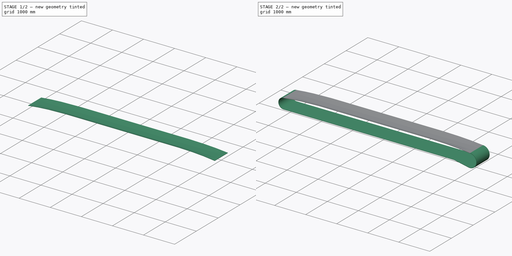
[diagram: build sequence overview — one tinted view per stage of 2, left to right]
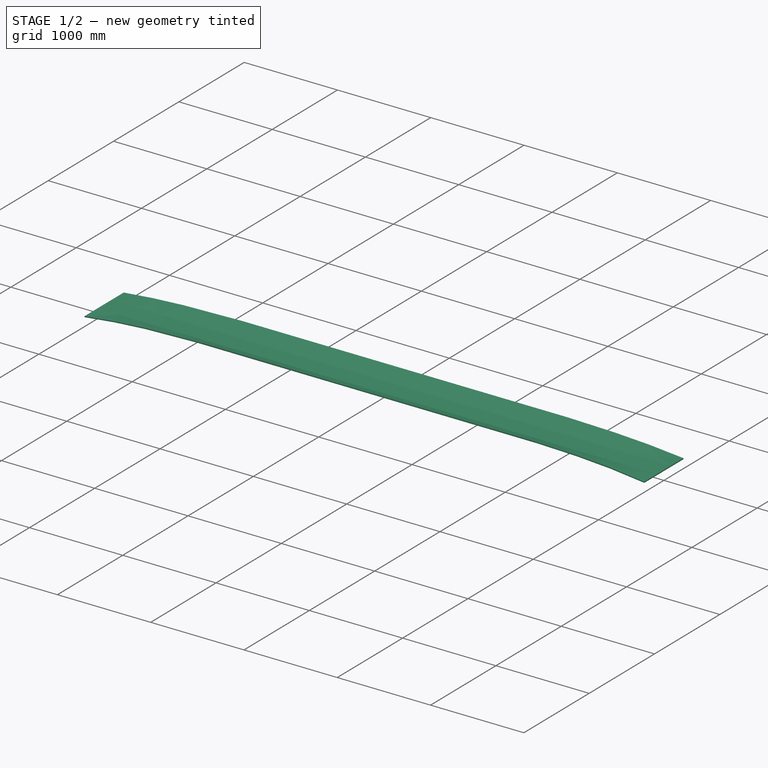
[diagram: stage 1 of 2 — iso view after this stage's code; geometry added in this stage tinted green]
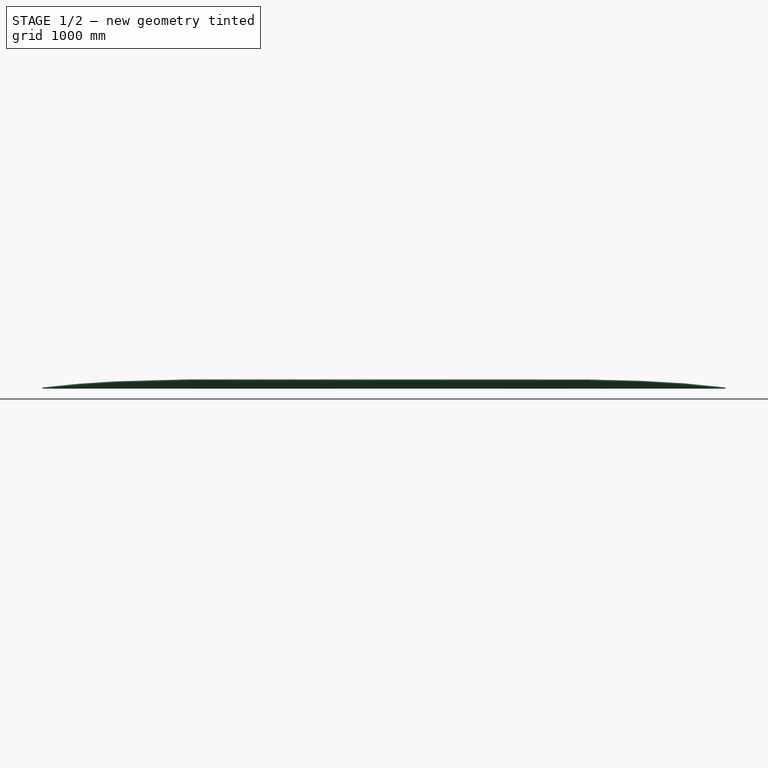
[diagram: stage 1 of 2 — front view after this stage's code; geometry added in this stage tinted green]
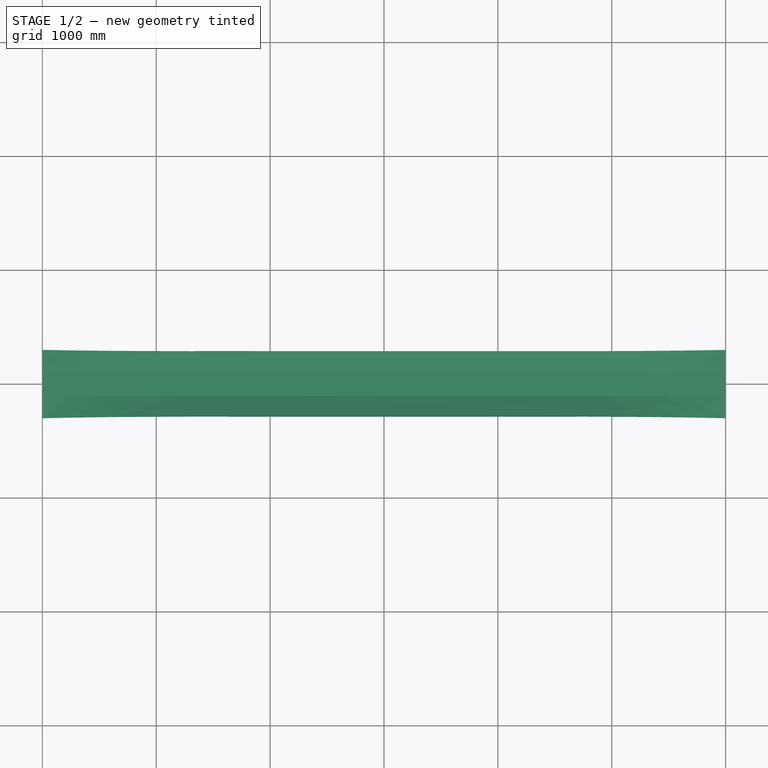
[diagram: stage 1 of 2 — top view after this stage's code; geometry added in this stage tinted green]
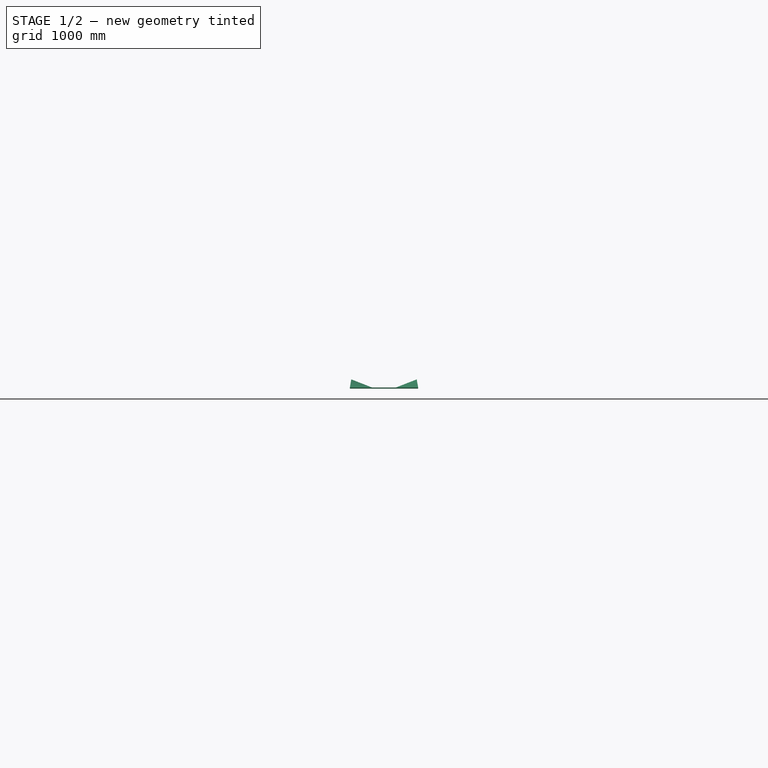
[diagram: stage 1 of 2 — right view after this stage's code; geometry added in this stage tinted green]
FCSTD DOCUMENT  (FreeCAD 1.0R39319 (Git))
Label: Belt0
License: All rights reserved
LicenseURL: https://en.wikipedia.org/wiki/All_rights_reserved
objects: Sketcher::SketchObject×7, Part::Extrusion×2, Spreadsheet::Sheet×1, Part::Sweep×1, App::Part×1
note: 17 computed .brp shape members not serialized (recipe doc carries the construction recipe); baked Part::Feature solids carry a one-line shape summary decoded from their .brp

FEATURE [Spreadsheet::Sheet] Spreadsheet
  cells = A2='CenterDistance C0; B2(C0)=6000; A3='BeltWidth B0; B3(B0)=600; C3=400; D3=450; E3=500; F3=600; G3=700; H3=750; I3=800; J3=900; K3=1000; A4='Belt b1; B4(b1)=210; C4=145; D4=165; E4=180; F4=210; G4=250; H4=265; I4=280; J4=315; K4=345; A5='Belt b2; B5(b2)=195; C5==(C3 - C4) / 2; D5==(D3 - D4) / 2; E5==(E3 - E4) / 2; F5==(F3 - F4) / 2; G5==(G3 - G4) / 2; H5==(H3 - H4) / 2; I5==(I3 - I4) / 2; J5==(J3 - J4) / 2; K5==(K3 - K4) / 2; A6='BeltThickness t0; B6(t0)=10; C6=10; D6=10; E6=10; F6=10; G6=10; H6=10; I6=10; J6=10; K6=10; A7='HeadPullyDia D0; B7(D0)=420; C7=300; D7=300; E7=360; F7=360; G7=360; H7=460; I7=460; J7=520; K7=520; A8='TailPullyDia d1; B8(d1)=320; C8=260; D8=260; E8=300; F8=300; G8=300; H8=390; I8=390; J8=440; K8=440; A9='SnapPullyDia d2; B9(d2)=200; C9=200; D9=200; E9=200; F9=200; G9=200; H9=200; I9=200; J9=200; K9=200; A10='SnapPully Ls; B10(Ls)=500; C10=500; D10=500; E10=500; F10=500; G10=500; H10=500; I10=500; J10=500; K10=500; A11='SnapPully h0; B11(h0)=180; C11=180; D11=180; E11=180; F11=180; G11=180; H11=180; I11=180; J11=180; K11=180
FEATURE [Part::Sweep] Sweep
  Frenet = false
  Sections = -> [Sketch,Sketch002,Sketch003,Sketch001,Sketch006]
  Solid = false
  Spine = -> Sketch004 [Edge2]
  Transition = 1
FEATURE [Part::Extrusion] Extrude002
  Base = -> Sweep
  Dir = (0,0,1)
  DirMode = 0
  FaceMakerClass = Part::FaceMakerBullseye
  FaceMakerMode = 3
  LengthFwd = 10
  LengthRev = 0
  Solid = false
  Symmetric = false
FEATURE [App::Part] Part  label="Belt"
  Group = -> [Spreadsheet,Extrude002,Sketch,Sketch001,Sketch002,Sweep,Sketch003,Sketch004,Sketch005,Sketch006,Extrude]
  JPN = コンベヤベルト
  Origin = -> Origin
  Placement = pos=(-543.28,-95.3912,269.959) rot=(0,0,1;0rad)
  Standard = B=600  L=6000
  count = 1
  g0 = 1
  mass = 65.8517
  material = Neoprene rubber
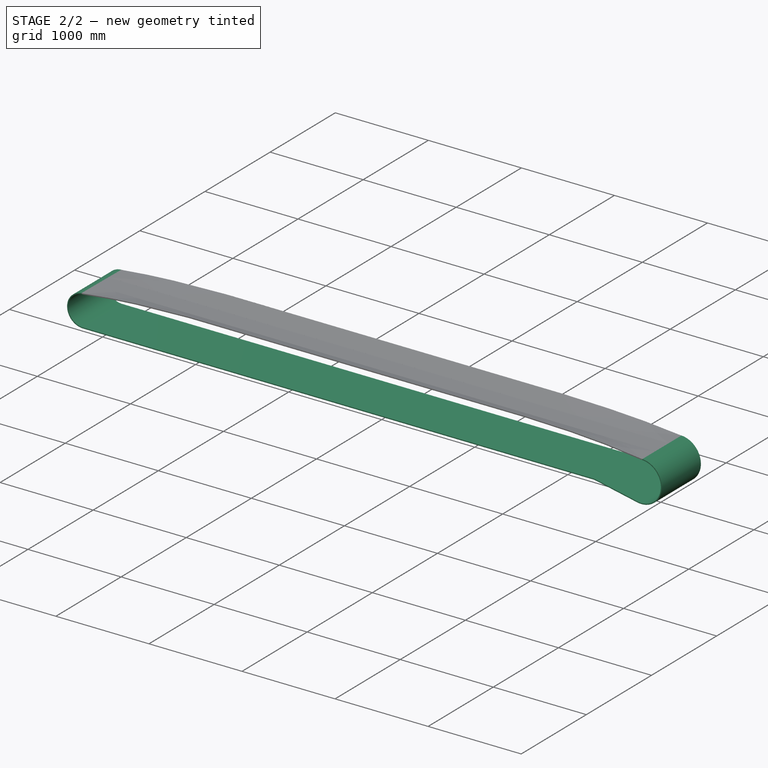
[diagram: stage 2 of 2 — iso view after this stage's code; geometry added in this stage tinted green]
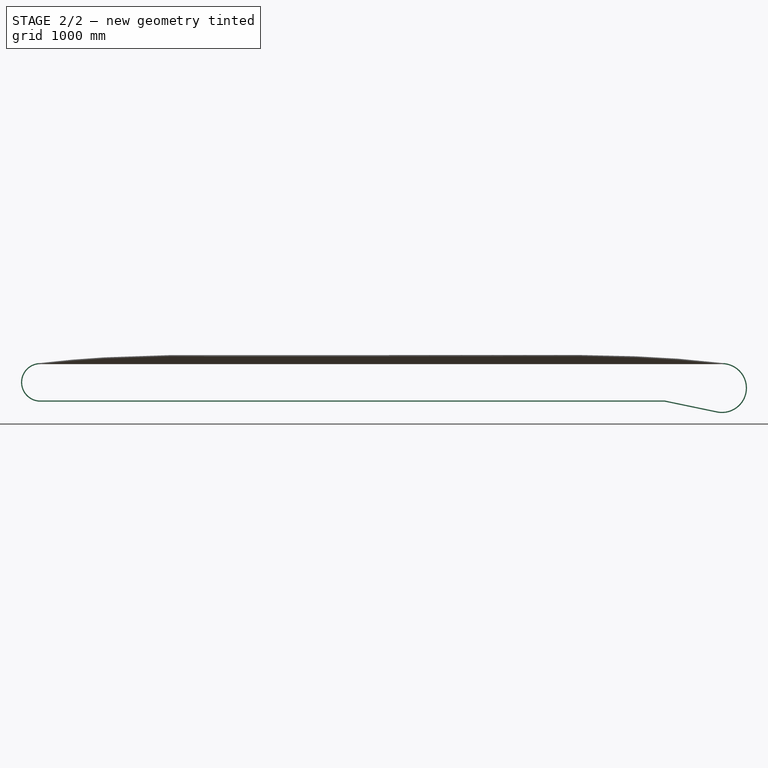
[diagram: stage 2 of 2 — front view after this stage's code; geometry added in this stage tinted green]
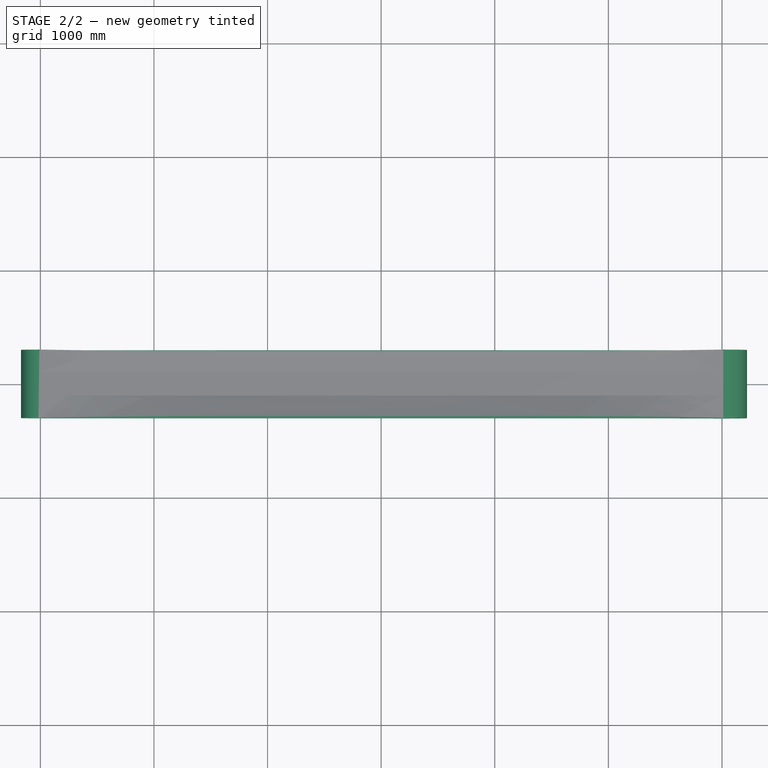
[diagram: stage 2 of 2 — top view after this stage's code; geometry added in this stage tinted green]
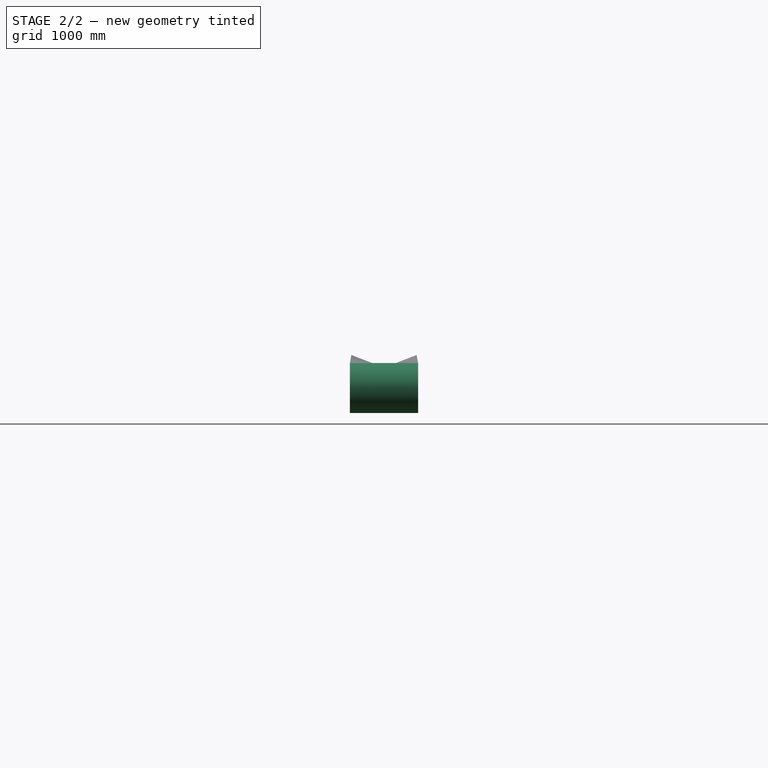
[diagram: stage 2 of 2 — right view after this stage's code; geometry added in this stage tinted green]
FEATURE [Sketcher::SketchObject] Sketch
  ArcFitTolerance = 0
  FullyConstrained = true
  MakeInternals = false
  Placement = pos=(0,0,0) rot=(0.57735,0.57735,0.57735;2.0944rad)
  expr: Constraints[1] = Spreadsheet.B0
  expr: Constraints[2] = Spreadsheet.d1 / 2
  sketch-geometry (1):
    g0: LineSegment StartX=-300 StartY=160 StartZ=0 EndX=300 EndY=160 EndZ=0
  constraints (3):
    c: Symmetric(g0,g0,g-2)
    c: DistanceX(g0,g0) = 600
    c: Distance(g-1,g0) = 160
FEATURE [Sketcher::SketchObject] Sketch001
  ArcFitTolerance = 0
  FullyConstrained = true
  MakeInternals = false
  Placement = pos=(6000,0,0) rot=(0.57735,0.57735,0.57735;2.0944rad)
  expr: .Placement.Base.x = Spreadsheet.C0
  expr: Constraints[1] = Spreadsheet.B0
  expr: Constraints[2] = Spreadsheet.d1 / 2
  sketch-geometry (1):
    g0: LineSegment StartX=-300 StartY=160 StartZ=0 EndX=300 EndY=160 EndZ=0
  constraints (3):
    c: Symmetric(g0,g0,g-2)
    c: DistanceX(g0,g0) = 600
    c: Distance(g-1,g0) = 160
FEATURE [Sketcher::SketchObject] Sketch002
  ArcFitTolerance = 0
  FullyConstrained = true
  MakeInternals = false
  Placement = pos=(1000,0,0) rot=(0.57735,0.57735,0.57735;2.0944rad)
  expr: Constraints[5] = Spreadsheet.b2
  expr: Constraints[6] = Spreadsheet.b2
  expr: Constraints[7] = Spreadsheet.d1 / 2
  expr: Constraints[8] = Spreadsheet.b1
  sketch-geometry (3):
    g0: LineSegment StartX=-288.24 StartY=226.694 StartZ=0 EndX=-105 EndY=160 EndZ=0
    g1: LineSegment StartX=-105 StartY=160 StartZ=0 EndX=105 EndY=160 EndZ=0
    g2: LineSegment StartX=105 StartY=160 StartZ=0 EndX=288.24 EndY=226.694 EndZ=0
  constraints (9):
    c: Coincident(g0,g1)
    c: Coincident(g1,g2)
    c: Angle(g2,g1) = 2.79253
    c: Angle(g1,g0) = 2.79253
    c: Symmetric(g1,g0,g-2)
    c: Distance(g2) = 195
    c: Distance(g0) = 195
    c: DistanceY(g-1,g1) = 160
    c: DistanceX(g1,g1) = 210
FEATURE [Sketcher::SketchObject] Sketch003
  ArcFitTolerance = 0
  FullyConstrained = true
  MakeInternals = false
  Placement = pos=(5000,0,0) rot=(0.57735,0.57735,0.57735;2.0944rad)
  expr: .Placement.Base.x = Spreadsheet.C0 - 1000
  expr: Constraints[5] = Spreadsheet.b2
  expr: Constraints[6] = Spreadsheet.b2
  expr: Constraints[7] = Spreadsheet.d1 / 2
  expr: Constraints[8] = Spreadsheet.b1
  sketch-geometry (3):
    g0: LineSegment StartX=-288.24 StartY=226.694 StartZ=0 EndX=-105 EndY=160 EndZ=0
    g1: LineSegment StartX=-105 StartY=160 StartZ=0 EndX=105 EndY=160 EndZ=0
    g2: LineSegment StartX=105 StartY=160 StartZ=0 EndX=288.24 EndY=226.694 EndZ=0
  constraints (9):
    c: Coincident(g0,g1)
    c: Coincident(g1,g2)
    c: Angle(g2,g1) = 2.79253
    c: Angle(g1,g0) = 2.79253
    c: Symmetric(g1,g0,g-2)
    c: Distance(g2) = 195
    c: Distance(g0) = 195
    c: DistanceY(g-1,g1) = 160
    c: DistanceX(g1,g1) = 210
FEATURE [Sketcher::SketchObject] Sketch004
  ArcFitTolerance = 0
  FullyConstrained = false
  MakeInternals = false
  Placement = pos=(6000,0,0) rot=(1,0,0;1.5708rad)
  expr: .Placement.Base.x = Spreadsheet.C0
  expr: Constraints[0] = Spreadsheet.d1
  expr: Constraints[12] = Spreadsheet.D0 / 2
  expr: Constraints[2] = Spreadsheet.C0
  sketch-geometry (5):
    g0: ArcOfCircle CenterX=-6000.43 CenterY=0 CenterZ=0 NormalX=0 NormalY=0 NormalZ=1 AngleXU=0 Radius=160 StartAngle=1.5681 EndAngle=4.71509
    g1: LineSegment StartX=-6000 StartY=159.999 StartZ=0 EndX=0 EndY=143.81 EndZ=0
    g2: LineSegment StartX=-59.6027 StartY=-267.554 StartZ=0 EndX=-500 EndY=-137.199 EndZ=0
    g3: LineSegment StartX=-500 StartY=-137.199 StartZ=0 EndX=-6000 EndY=-159.999 EndZ=0
    g4: ArcOfCircle CenterX=0 CenterY=-66.1903 CenterZ=0 NormalX=0 NormalY=0 NormalZ=1 AngleXU=0 Radius=210 StartAngle=4.42461 EndAngle=7.85398
  constraints (14):
    c: Diameter(g0) = 320
    c: Coincident(g0,g3)
    c: DistanceX(g0,g1) = 6000
    c: Vertical(g0,g0)
    c: PointOnObject(g0,g-1)
    c: Coincident(g2,g3)
    c: DistanceX(g2,g-1) = 500
    c: Tangent(g1,g0) = 1.5708
    c: PointOnObject(g4,g-2)
    c: PointOnObject(g4,g-2)
    c: Tangent(g4,g2) = 1.5708
    c: Coincident(g1,g4)
    c: Radius(g4) = 210
    c: Distance(g4,g-1) = 66.1903
FEATURE [Sketcher::SketchObject] Sketch005
  ArcFitTolerance = 0
  FullyConstrained = false
  MakeInternals = false
  Placement = pos=(6000,0,0) rot=(1,0,0;1.5708rad)
  expr: .Placement.Base.x = Spreadsheet.C0
  expr: Constraints[0] = Spreadsheet.d1
  expr: Constraints[25] = Spreadsheet.D0 / 2
  expr: Constraints[26] = Spreadsheet.C0
  expr: Constraints[27] = (Spreadsheet.D0 - Spreadsheet.d1) / 2
  expr: Constraints[6] = Spreadsheet.t0
  sketch-geometry (10):
    g0: ArcOfCircle CenterX=-6000 CenterY=0 CenterZ=0 NormalX=0 NormalY=0 NormalZ=1 AngleXU=0 Radius=160 StartAngle=1.5708 EndAngle=4.71239
    g1: LineSegment StartX=-42.7085 StartY=-255.611 StartZ=0 EndX=-503.01 EndY=-160 EndZ=0
    g2: LineSegment StartX=-503.01 StartY=-160 StartZ=0 EndX=-6000 EndY=-160 EndZ=0
    g3: ArcOfCircle CenterX=-6000 CenterY=0 CenterZ=0 NormalX=0 NormalY=0 NormalZ=1 AngleXU=0 Radius=170 StartAngle=1.5708 EndAngle=4.71239
    g4: LineSegment StartX=-6000 StartY=-170 StartZ=0 EndX=-504.037 EndY=-170 EndZ=0
    g5: LineSegment StartX=-504.037 StartY=-170 StartZ=0 EndX=-44.7422 EndY=-265.402 EndZ=0
    g6: LineSegment StartX=-6000 StartY=160 StartZ=0 EndX=-6000 EndY=170 EndZ=0
    g7: ArcOfCircle CenterX=0 CenterY=-50 CenterZ=0 NormalX=0 NormalY=0 NormalZ=1 AngleXU=0 Radius=210 StartAngle=4.50759 EndAngle=7.85398
    g8: ArcOfCircle CenterX=0 CenterY=-50 CenterZ=0 NormalX=0 NormalY=0 NormalZ=1 AngleXU=0 Radius=220 StartAngle=4.50759 EndAngle=7.85398
    g9: LineSegment StartX=0 StartY=170 StartZ=0 EndX=0 EndY=160 EndZ=0
  constraints (28):
    c: Diameter(g0) = 320
    c: Horizontal(g2)
    c: Coincident(g0,g2)
    c: Vertical(g0,g0)
    c: Coincident(g3,g0)
    c: Tangent(g3,g4) = -1.5708
    c: DistanceY(g3,g0) = 10
    c: Vertical(g0,g3)
    c: Coincident(g6,g0)
    c: Coincident(g6,g3)
    c: Vertical(g0,g0)
    c: Parallel(g5,g1)
    c: Parallel(g4,g2)
    c: Coincident(g1,g2)
    c: Coincident(g5,g4)
    c: PointOnObject(g0,g-1)
    c: PointOnObject(g7,g-2)
    c: PointOnObject(g7,g-2)
    c: Coincident(g8,g7)
    c: PointOnObject(g8,g-2)
    c: Coincident(g9,g8)
    c: Coincident(g9,g7)
    c: DistanceY(g9,g9) = 10
    c: Tangent(g7,g1) = 1.5708
    c: Tangent(g8,g5) = -1.5708
    c: Radius(g7) = 210
    c: DistanceX(g0,g-1) = 6000
    c: Distance(g7,g-1) = 50
FEATURE [Sketcher::SketchObject] Sketch006
  ArcFitTolerance = 0
  FullyConstrained = true
  MakeInternals = false
  Placement = pos=(3000,0,0) rot=(0.57735,0.57735,0.57735;2.0944rad)
  expr: .Placement.Base.x = Spreadsheet.C0 / 2
  expr: Constraints[5] = Spreadsheet.b2
  expr: Constraints[6] = Spreadsheet.b2
  expr: Constraints[7] = Spreadsheet.d1 / 2
  expr: Constraints[8] = Spreadsheet.b1
  sketch-geometry (3):
    g0: LineSegment StartX=-288.24 StartY=226.694 StartZ=0 EndX=-105 EndY=160 EndZ=0
    g1: LineSegment StartX=-105 StartY=160 StartZ=0 EndX=105 EndY=160 EndZ=0
    g2: LineSegment StartX=105 StartY=160 StartZ=0 EndX=288.24 EndY=226.694 EndZ=0
  constraints (9):
    c: Coincident(g0,g1)
    c: Coincident(g1,g2)
    c: Angle(g2,g1) = 2.79253
    c: Angle(g1,g0) = 2.79253
    c: Symmetric(g1,g0,g-2)
    c: Distance(g2) = 195
    c: Distance(g0) = 195
    c: DistanceY(g-1,g1) = 160
    c: DistanceX(g1,g1) = 210
FEATURE [Part::Extrusion] Extrude
  Base = -> Sketch005
  Dir = (0,-1,2e-16)
  DirMode = 2
  FaceMakerClass = Part::FaceMakerBullseye
  FaceMakerMode = 3
  LengthFwd = 600
  LengthRev = 0
  Solid = true
  Symmetric = true
  expr: LengthFwd = Spreadsheet.B0
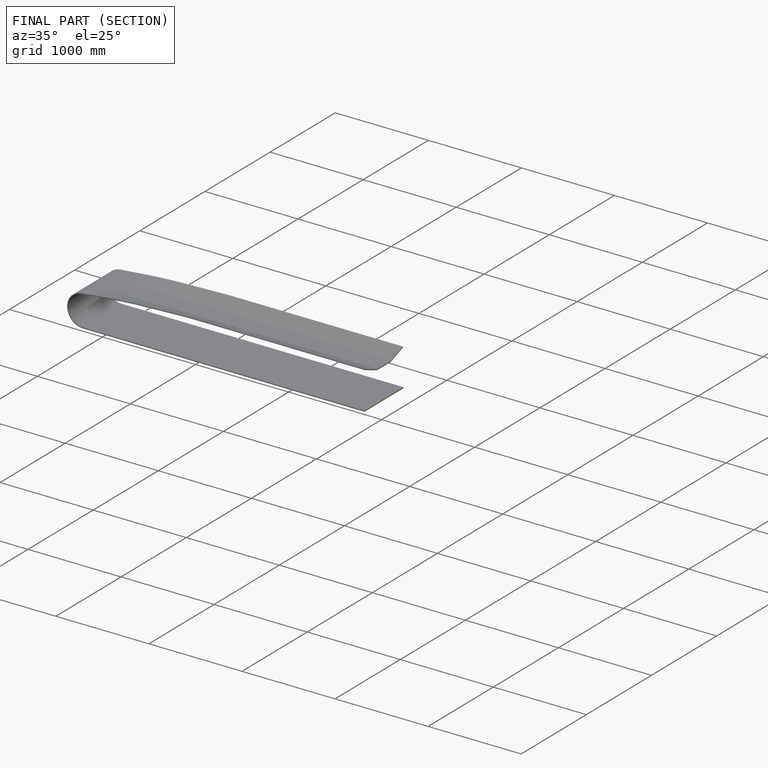
[diagram: finished part — half-section view (interior)]
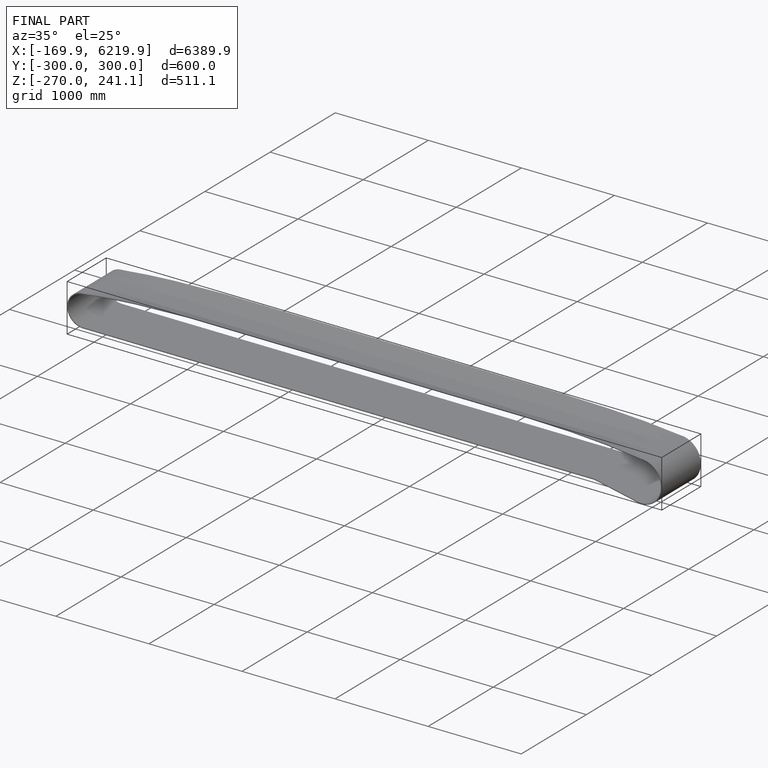
[diagram: finished part — iso view with bounding-box wireframe]
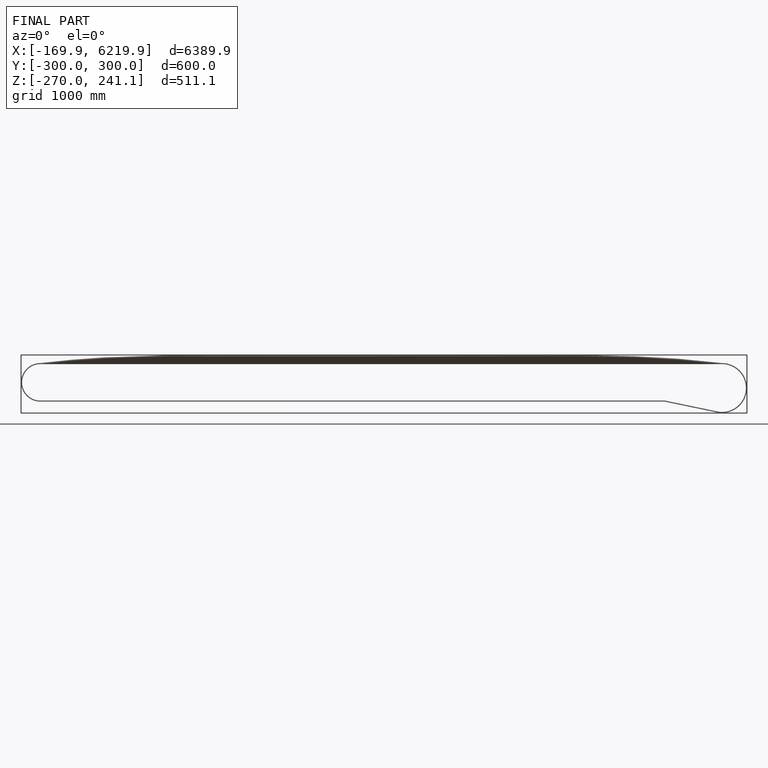
[diagram: finished part — front view with bounding-box wireframe]
